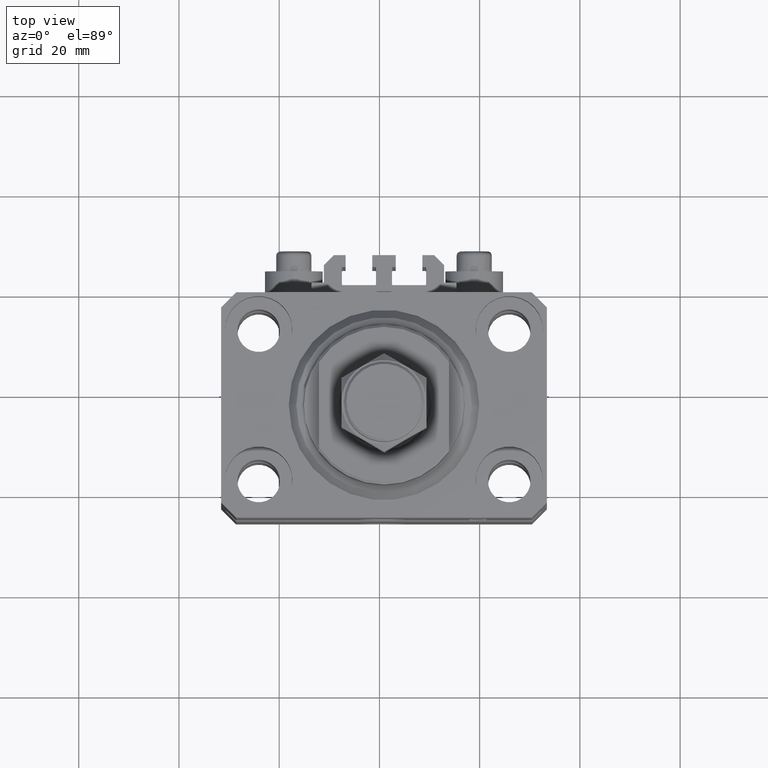
[diagram: clean part render]
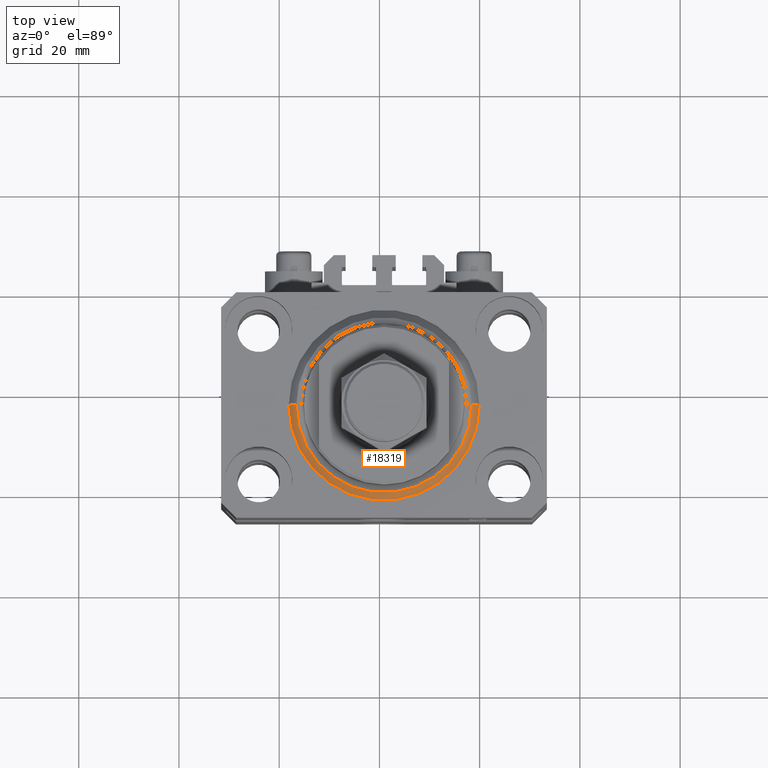
[diagram: same view with one face highlighted and labeled with its STEP entity id]
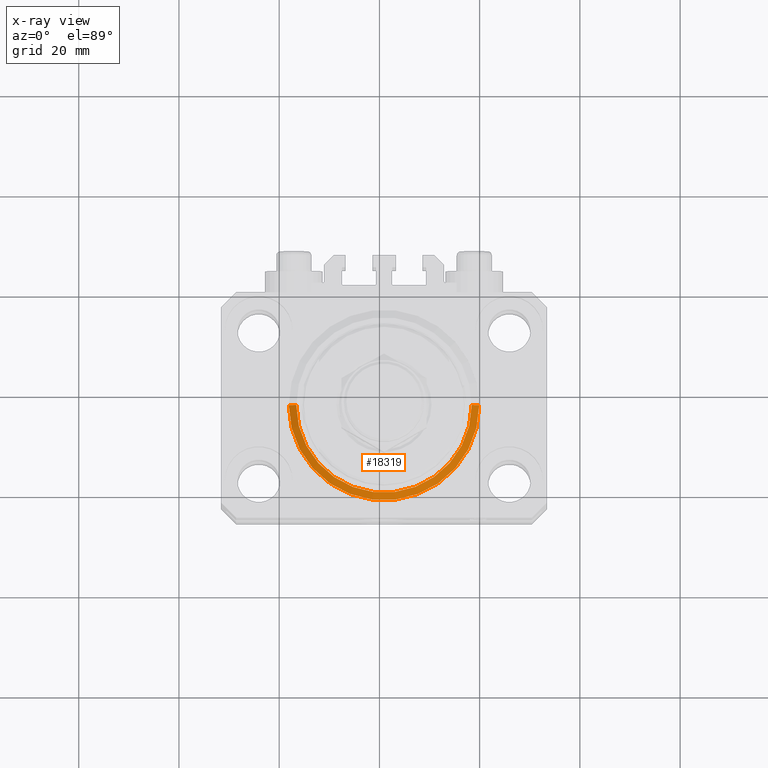
[diagram: x-ray of the same camera — body ghosted, the highlighted face saturated]
A machine part, top view. The second image highlights one B-rep face of the part: STEP entity #18319.
The next image is the same camera in x-ray: the body ghosted, the highlighted face saturated — about 0% of this face is hidden behind the body in this view.
In plain terms, the highlighted conical surface has half-angle 45 deg.
Its self-contained STEP definition (entity closure, byte-faithful):
#2608 = CARTESIAN_POINT ( 'NONE',  ( 0.000000000000000000, 0.000000000000000000, 1.500000000000004885 ) ) ;
#3508 = VERTEX_POINT ( 'NONE', #49223 ) ;
#3542 = DIRECTION ( 'NONE',  ( 1.000000000000000000, 0.000000000000000000, 0.000000000000000000 ) ) ;
#4508 = VECTOR ( 'NONE', #28317, 1000.000000000000000 ) ;
#8592 = CARTESIAN_POINT ( 'NONE',  ( -19.00000000000000000, 2.326828918379970970E-15, 1.500000000000004885 ) ) ;
#8841 = CARTESIAN_POINT ( 'NONE',  ( 19.00000000000000000, 0.000000000000000000, 1.500000000000004885 ) ) ;
#9320 = ORIENTED_EDGE ( 'NONE', *, *, #19295, .T. ) ;
#11832 = VERTEX_POINT ( 'NONE', #16749 ) ;
#13124 = EDGE_LOOP ( 'NONE', ( #32049, #48031, #9320, #36783 ) ) ;
#13388 = FACE_OUTER_BOUND ( 'NONE', #13124, .T. ) ;
#15039 = DIRECTION ( 'NONE',  ( -0.000000000000000000, -0.000000000000000000, 1.000000000000000000 ) ) ;
#15774 = AXIS2_PLACEMENT_3D ( 'NONE', #47588, #29115, #43857 ) ;
#16749 = CARTESIAN_POINT ( 'NONE',  ( -19.00000000000000000, 0.000000000000000000, 1.500000000000004885 ) ) ;
#16984 = AXIS2_PLACEMENT_3D ( 'NONE', #48974, #15039, #3542 ) ;
#18319 = ADVANCED_FACE ( 'NONE', ( #13388 ), #29980, .T. ) ;
#19295 = EDGE_CURVE ( 'NONE', #3508, #22297, #28558, .T. ) ;
#21683 = CARTESIAN_POINT ( 'NONE',  ( -17.49999999999999289, 2.234980408443919215E-15, 0.000000000000000000 ) ) ;
#22297 = VERTEX_POINT ( 'NONE', #24642 ) ;
#23776 = EDGE_CURVE ( 'NONE', #30977, #11832, #43783, .T. ) ;
#24642 = CARTESIAN_POINT ( 'NONE',  ( 19.00000000000000000, 2.326828918379970970E-15, 1.500000000000004885 ) ) ;
#25214 = EDGE_CURVE ( 'NONE', #3508, #30977, #42899, .T. ) ;
#25831 = DIRECTION ( 'NONE',  ( -0.000000000000000000, -0.000000000000000000, 1.000000000000000000 ) ) ;
#28063 = DIRECTION ( 'NONE',  ( -0.7071067811865483499, 8.659560562354943952E-17, 0.7071067811865467956 ) ) ;
#28317 = DIRECTION ( 'NONE',  ( 0.7071067811865483499, 0.000000000000000000, 0.7071067811865467956 ) ) ;
#28558 = LINE ( 'NONE', #8841, #4508 ) ;
#29115 = DIRECTION ( 'NONE',  ( -0.000000000000000000, -0.000000000000000000, -1.000000000000000000 ) ) ;
#29980 = CONICAL_SURFACE ( 'NONE', #42764, 19.00000000000000000, 0.7853981633974492782 ) ;
#30977 = VERTEX_POINT ( 'NONE', #21683 ) ;
#32049 = ORIENTED_EDGE ( 'NONE', *, *, #23776, .F. ) ;
#33089 = DIRECTION ( 'NONE',  ( 1.000000000000000000, 0.000000000000000000, 0.000000000000000000 ) ) ;
#36783 = ORIENTED_EDGE ( 'NONE', *, *, #43391, .F. ) ;
#41319 = VECTOR ( 'NONE', #28063, 1000.000000000000000 ) ;
#42764 = AXIS2_PLACEMENT_3D ( 'NONE', #2608, #25831, #33089 ) ;
#42899 = CIRCLE ( 'NONE', #15774, 17.49999999999999289 ) ;
#43391 = EDGE_CURVE ( 'NONE', #11832, #22297, #44059, .T. ) ;
#43783 = LINE ( 'NONE', #8592, #41319 ) ;
#43857 = DIRECTION ( 'NONE',  ( 1.000000000000000000, 0.000000000000000000, 0.000000000000000000 ) ) ;
#44059 = CIRCLE ( 'NONE', #16984, 19.00000000000000000 ) ;
#47588 = CARTESIAN_POINT ( 'NONE',  ( 0.000000000000000000, 0.000000000000000000, 0.000000000000000000 ) ) ;
#48031 = ORIENTED_EDGE ( 'NONE', *, *, #25214, .F. ) ;
#48974 = CARTESIAN_POINT ( 'NONE',  ( 0.000000000000000000, 0.000000000000000000, 1.500000000000004885 ) ) ;
#49223 = CARTESIAN_POINT ( 'NONE',  ( 17.49999999999999289, 0.000000000000000000, 0.000000000000000000 ) ) ;